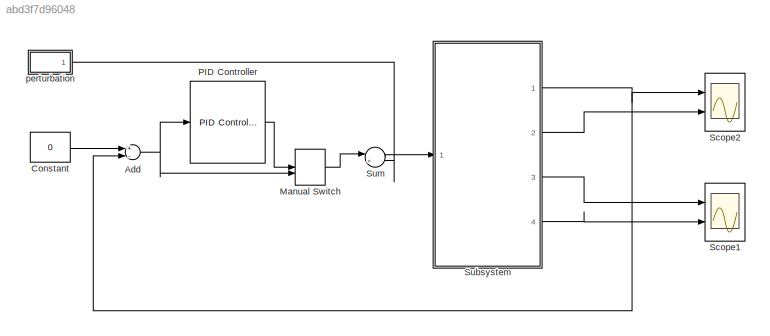
MODEL slx_abd3f7d96048
KIND model
CONFIG AbsTol = auto
CONFIG EnableMultiTasking = on
CONFIG FixedStep = auto
CONFIG MaxStep = 0.001
CONFIG MinStep = auto
CONFIG RelTol = 1e-3
CONFIG SampleTimeConstraint = Unconstrained
CONFIG Solver = VariableStepAuto
CONFIG SolverName = VariableStepAuto
CONFIG StartTime = 0.0
CONFIG StopTime = 20
BLOCK [Sum] Add
  InputSameDT = off
  Inputs = +-
  OutDataTypeStr = Inherit: Inherit via internal rule
  Ports = [2, 1]
  SaturateOnIntegerOverflow = off
BLOCK [Constant] Constant
  Value = 0
BLOCK [ManualSwitch] Manual Switch
BLOCK [Reference] PID Controller  REF=simulink/Continuous/PID Controller
  Ports = [1, 1]
  SourceBlock = simulink/Continuous/PID Controller
  SourceProductBaseCode = SL
  SourceProductName = Simulink
  SourceType = PID 1dof
BLOCK [Scope] Scope1
  Floating = off
  NumInputPorts = 2
  Ports = [2]
  ScopeSpecificationString = Simulink.scopes.TimeScopeBlockCfg('CurrentConfiguration', extmgr.ConfigurationSet(extmgr.Configuration('Core','General UI',true),extmgr.Configuration('Core','Source UI',true),extmgr.Configuration('Sources','WiredSimulink',true,'DataLoggingVariableName','ScopeData1'),extmgr.Configuration('Visuals','Time Domain',true,'SerializedDisplays',{struct('MinYLimReal','-0.00484','MaxYLimReal','0.00466','YLab...<+2139ch>
BLOCK [Scope] Scope2
  Floating = off
  NumInputPorts = 2
  Ports = [2]
  ScopeSpecificationString = Simulink.scopes.TimeScopeBlockCfg('CurrentConfiguration', extmgr.ConfigurationSet(extmgr.Configuration('Core','General UI',true),extmgr.Configuration('Core','Source UI',true),extmgr.Configuration('Sources','WiredSimulink',true,'DataLoggingVariableName','ScopeData1'),extmgr.Configuration('Visuals','Time Domain',true,'SerializedDisplays',{struct('MinYLimReal','-0.00029','MaxYLimReal','0.00047','YLab...<+2192ch>
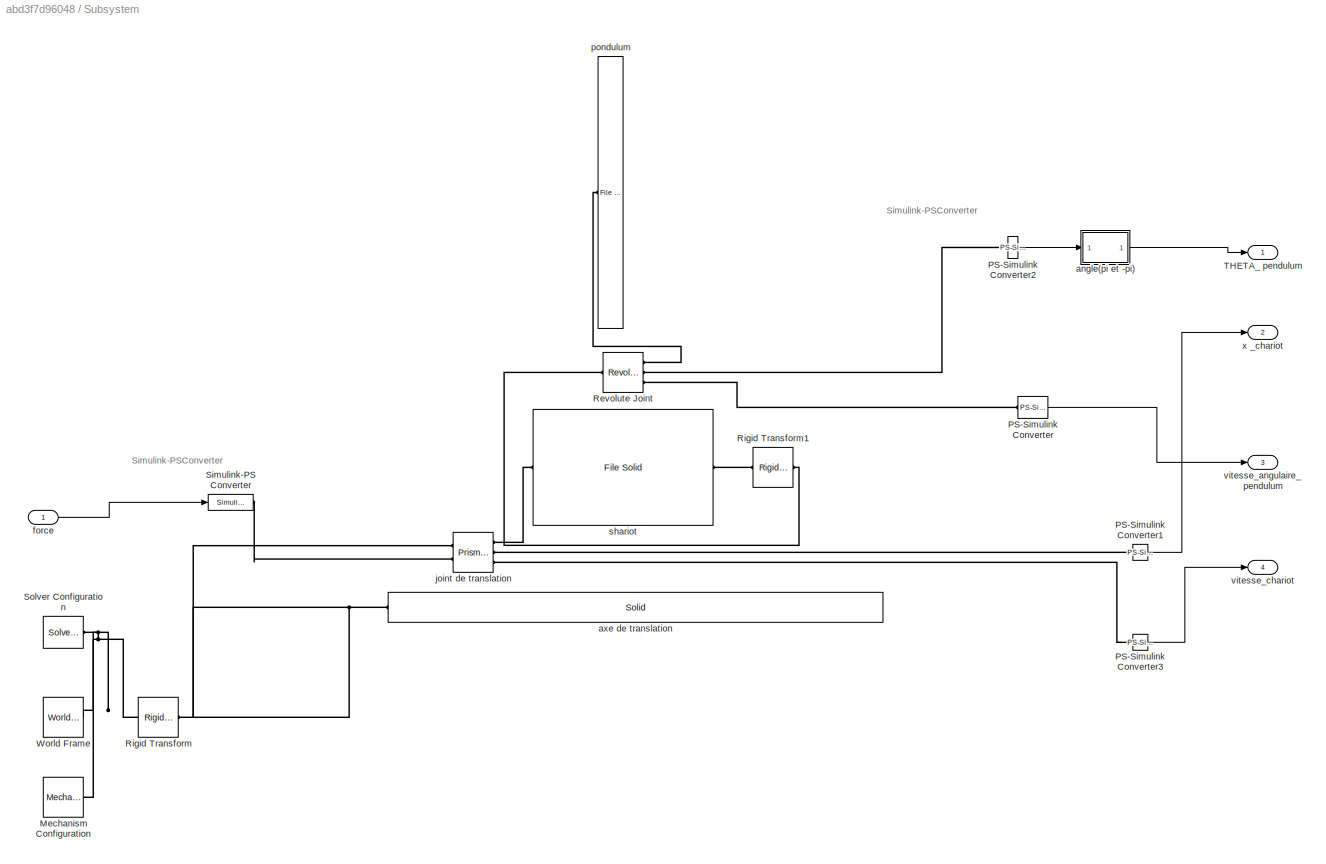
BLOCK [SubSystem] Subsystem
  Ports = [1, 4]
  RequestExecContextInheritance = off
BLOCK [Reference] Subsystem/                                                                                                        axe de translation    REF=sm_lib/Body Elements/Solid
  Ports = [0, 0, 0, 0, 0, 1]
  SourceBlock = sm_lib/Body Elements/Solid
  SourceProductBaseCode = MS
  SourceProductName = Simscape Multibody
  SourceType = Solid
BLOCK [Reference] Subsystem/Mechanism Configuration  REF=sm_lib/Utilities/Mechanism
Configuration
  Ports = [0, 0, 0, 0, 0, 0, 1]
  SourceBlock = sm_lib/Utilities/Mechanism\nConfiguration
  SourceProductBaseCode = MS
  SourceProductName = Simscape Multibody
  SourceType = Mechanism\nConfiguration
BLOCK [Reference] Subsystem/PS-Simulink Converter  REF=nesl_utility/PS-Simulink
Converter
  Ports = [0, 1, 0, 0, 0, 1]
  SourceBlock = nesl_utility/PS-Simulink\nConverter
  SourceProductBaseCode = SS
  SourceProductName = Simscape
  SourceType = PS-Simulink\nConverter
BLOCK [Reference] Subsystem/PS-Simulink Converter1  REF=nesl_utility/PS-Simulink
Converter
  Ports = [0, 1, 0, 0, 0, 1]
  SourceBlock = nesl_utility/PS-Simulink\nConverter
  SourceProductBaseCode = SS
  SourceProductName = Simscape
  SourceType = PS-Simulink\nConverter
BLOCK [Reference] Subsystem/PS-Simulink Converter2  REF=nesl_utility/PS-Simulink
Converter
  Ports = [0, 1, 0, 0, 0, 1]
  SourceBlock = nesl_utility/PS-Simulink\nConverter
  SourceProductBaseCode = SS
  SourceProductName = Simscape
  SourceType = PS-Simulink\nConverter
BLOCK [Reference] Subsystem/PS-Simulink Converter3  REF=nesl_utility/PS-Simulink
Converter
  Ports = [0, 1, 0, 0, 0, 1]
  SourceBlock = nesl_utility/PS-Simulink\nConverter
  SourceProductBaseCode = SS
  SourceProductName = Simscape
  SourceType = PS-Simulink\nConverter
BLOCK [Reference] Subsystem/Revolute Joint  REF=sm_lib/Joints/Revolute Joint
  Ports = [0, 0, 0, 0, 0, 1, 3]
  SourceBlock = sm_lib/Joints/Revolute Joint
  SourceProductBaseCode = MS
  SourceProductName = Simscape Multibody
  SourceType = Revolute Joint
BLOCK [Reference] Subsystem/Rigid Transform  REF=sm_lib/Frames and
Transforms/Rigid
Transform
  Ports = [0, 0, 0, 0, 0, 1, 1]
  SourceBlock = sm_lib/Frames and\nTransforms/Rigid\nTransform
  SourceProductBaseCode = MS
  SourceProductName = Simscape Multibody
  SourceType = Rigid\nTransform
BLOCK [Reference] Subsystem/Rigid Transform1  REF=sm_lib/Frames and
Transforms/Rigid
Transform
  Ports = [0, 0, 0, 0, 0, 1, 1]
  SourceBlock = sm_lib/Frames and\nTransforms/Rigid\nTransform
  SourceProductBaseCode = MS
  SourceProductName = Simscape Multibody
  SourceType = Rigid\nTransform
BLOCK [Reference] Subsystem/Simulink-PS Converter  REF=nesl_utility/Simulink-PS
Converter
  Ports = [1, 0, 0, 0, 0, 0, 1]
  SourceBlock = nesl_utility/Simulink-PS\nConverter
  SourceProductBaseCode = SS
  SourceProductName = Simscape
  SourceType = Simulink-PS\nConverter
BLOCK [Reference] Subsystem/Solver Configuration  REF=nesl_utility/Solver
Configuration
  Ports = [0, 0, 0, 0, 0, 0, 1]
  SourceBlock = nesl_utility/Solver\nConfiguration
  SourceProductBaseCode = SS
  SourceProductName = Simscape
  SourceType = Solver\nConfiguration
BLOCK [Outport] Subsystem/THETA_ pendulum
  IconDisplay = Port number
BLOCK [Reference] Subsystem/World Frame  REF=sm_lib/Frames and
Transforms/World Frame
  Ports = [0, 0, 0, 0, 0, 0, 1]
  SourceBlock = sm_lib/Frames and\nTransforms/World Frame
  SourceProductBaseCode = MS
  SourceProductName = Simscape Multibody
  SourceType = World Frame
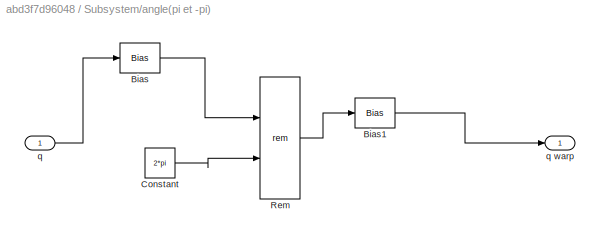
BLOCK [SubSystem] Subsystem/angle(pi  et -pi)
  Ports = [1, 1]
  RequestExecContextInheritance = off
BLOCK [Bias] Subsystem/angle(pi  et -pi)/Bias
  Bias = pi
  SaturateOnIntegerOverflow = off
BLOCK [Bias] Subsystem/angle(pi  et -pi)/Bias1
  Bias = -pi
  SaturateOnIntegerOverflow = off
BLOCK [Constant] Subsystem/angle(pi  et -pi)/Constant
  Value = 2*pi
BLOCK [Math] Subsystem/angle(pi  et -pi)/Rem
  Operator = rem
  Ports = [2, 1]
BLOCK [Inport] Subsystem/angle(pi  et -pi)/q
  IconDisplay = Port number
BLOCK [Outport] Subsystem/angle(pi  et -pi)/q warp
  IconDisplay = Port number
BLOCK [Inport] Subsystem/force 
  IconDisplay = Port number
BLOCK [Reference] Subsystem/joint de translation   REF=sm_lib/Joints/Prismatic
Joint
  Ports = [0, 0, 0, 0, 0, 2, 3]
  SourceBlock = sm_lib/Joints/Prismatic\nJoint
  SourceProductBaseCode = MS
  SourceProductName = Simscape Multibody
  SourceType = Prismatic\nJoint
BLOCK [Reference] Subsystem/pondulum  REF=sm_lib/Body Elements/File Solid
  Ports = [0, 0, 0, 0, 0, 1]
  SourceBlock = sm_lib/Body Elements/File Solid
  SourceProductBaseCode = MS
  SourceProductName = Simscape Multibody
  SourceType = File Solid
BLOCK [Reference] Subsystem/shariot  REF=sm_lib/Body Elements/File Solid
  Ports = [0, 0, 0, 0, 0, 1, 1]
  SourceBlock = sm_lib/Body Elements/File Solid
  SourceProductBaseCode = MS
  SourceProductName = Simscape Multibody
  SourceType = File Solid
BLOCK [Outport] Subsystem/vitesse_angulaire_ pendulum
  IconDisplay = Port number
  Port = 3
BLOCK [Outport] Subsystem/vitesse_chariot
  IconDisplay = Port number
  Port = 4
BLOCK [Outport] Subsystem/x _chariot
  IconDisplay = Port number
  Port = 2
BLOCK [Sum] Sum
  IconShape = round
  InputSameDT = off
  Inputs = |++
  OutDataTypeStr = Inherit: Inherit via internal rule
  Ports = [2, 1]
  SaturateOnIntegerOverflow = off
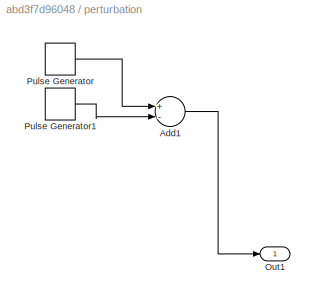
BLOCK [SubSystem] perturbation 
  Ports = [0, 1]
  RequestExecContextInheritance = off
BLOCK [Sum] perturbation /Add1
  InputSameDT = off
  Inputs = +-
  OutDataTypeStr = Inherit: Inherit via internal rule
  Ports = [2, 1]
  SaturateOnIntegerOverflow = off
BLOCK [Outport] perturbation /Out1
  IconDisplay = Port number
BLOCK [DiscretePulseGenerator] perturbation /Pulse Generator
  Amplitude = 0.1
  Period = 3
  Ports = [0, 1]
  PulseType = Time based
  PulseWidth = 20
BLOCK [DiscretePulseGenerator] perturbation /Pulse Generator1
  Amplitude = 0.1
  Period = 3
  PhaseDelay = 0.1
  Ports = [0, 1]
  PulseType = Time based
  PulseWidth = 20
ANNOTATION Subsystem: Simulink-PSConverter
NET Add:1 -> Manual Switch:2, PID Controller:1
LINE Constant:1 -> Add:1
LINE Manual Switch:1 -> Sum:1
LINE PID Controller:1 -> Manual Switch:1
LINE Subsystem/PS-Simulink Converter1:1 -> Subsystem/x _chariot:1
LINE Subsystem/PS-Simulink Converter2:1 -> Subsystem/angle(pi  et -pi):1
LINE Subsystem/PS-Simulink Converter3:1 -> Subsystem/vitesse_chariot:1
LINE Subsystem/PS-Simulink Converter:1 -> Subsystem/vitesse_angulaire_ pendulum:1
LINE Subsystem/angle(pi  et -pi)/Bias1:1 -> Subsystem/angle(pi  et -pi)/q warp:1
LINE Subsystem/angle(pi  et -pi)/Bias:1 -> Subsystem/angle(pi  et -pi)/Rem:1
LINE Subsystem/angle(pi  et -pi)/Constant:1 -> Subsystem/angle(pi  et -pi)/Rem:2
LINE Subsystem/angle(pi  et -pi)/Rem:1 -> Subsystem/angle(pi  et -pi)/Bias1:1
LINE Subsystem/angle(pi  et -pi)/q:1 -> Subsystem/angle(pi  et -pi)/Bias:1
LINE Subsystem/angle(pi  et -pi):1 -> Subsystem/THETA_ pendulum:1
LINE Subsystem/force :1 -> Subsystem/Simulink-PS Converter:1
NET Subsystem:1 -> Add:2, Scope2:1
LINE Subsystem:2 -> Scope2:2
LINE Subsystem:3 -> Scope1:1
LINE Subsystem:4 -> Scope1:2
LINE Sum:1 -> Subsystem:1
LINE perturbation /Add1:1 -> perturbation /Out1:1
LINE perturbation /Pulse Generator1:1 -> perturbation /Add1:2
LINE perturbation /Pulse Generator:1 -> perturbation /Add1:1
LINE perturbation :1 -> Sum:2
PNET net1: Subsystem/                                                                                                        axe de translation  :LConn1 -- Subsystem/Rigid Transform:RConn1 -- Subsystem/joint de translation :LConn1
PNET net2: Subsystem/Mechanism Configuration:RConn1 -- Subsystem/Rigid Transform:LConn1 -- Subsystem/Solver Configuration:RConn1 -- Subsystem/World Frame:RConn1
PLINE Subsystem/PS-Simulink Converter1:LConn1 -- Subsystem/joint de translation :RConn2
PLINE Subsystem/PS-Simulink Converter2:LConn1 -- Subsystem/Revolute Joint:RConn2
PLINE Subsystem/PS-Simulink Converter3:LConn1 -- Subsystem/joint de translation :RConn3
PLINE Subsystem/PS-Simulink Converter:LConn1 -- Subsystem/Revolute Joint:RConn3
PLINE Subsystem/Revolute Joint:LConn1 -- Subsystem/Rigid Transform1:RConn1
PLINE Subsystem/Revolute Joint:RConn1 -- Subsystem/pondulum:LConn1
PLINE Subsystem/Rigid Transform1:LConn1 -- Subsystem/shariot:RConn1
PLINE Subsystem/Simulink-PS Converter:RConn1 -- Subsystem/joint de translation :LConn2
PLINE Subsystem/joint de translation :RConn1 -- Subsystem/shariot:LConn1
note: NET lines group one-source signal fan-out (src -> all destinations, sorted); 1:1 wires keep LINE; PNET lines group multi-terminal physical nets as a canonical sorted terminal list (undirected conserving connections); 2-terminal nets keep the pairwise PLINE form
